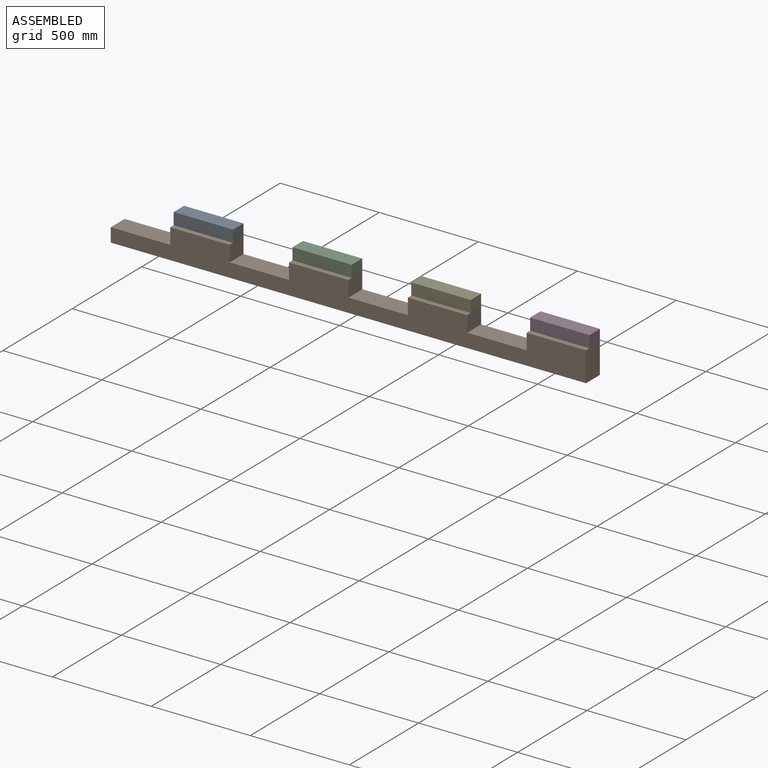
[diagram: assembled view]
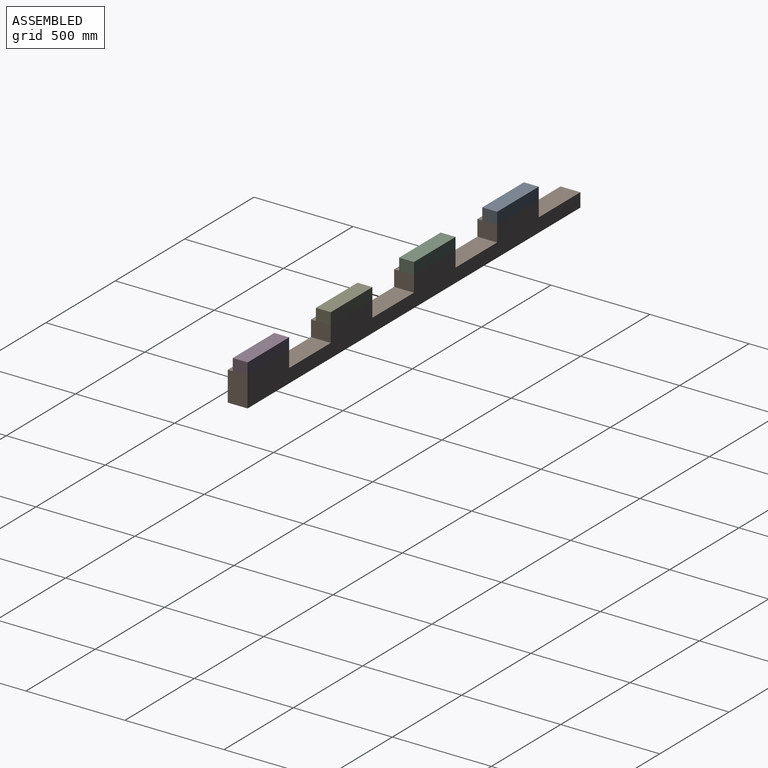
[diagram: assembled view, second angle]
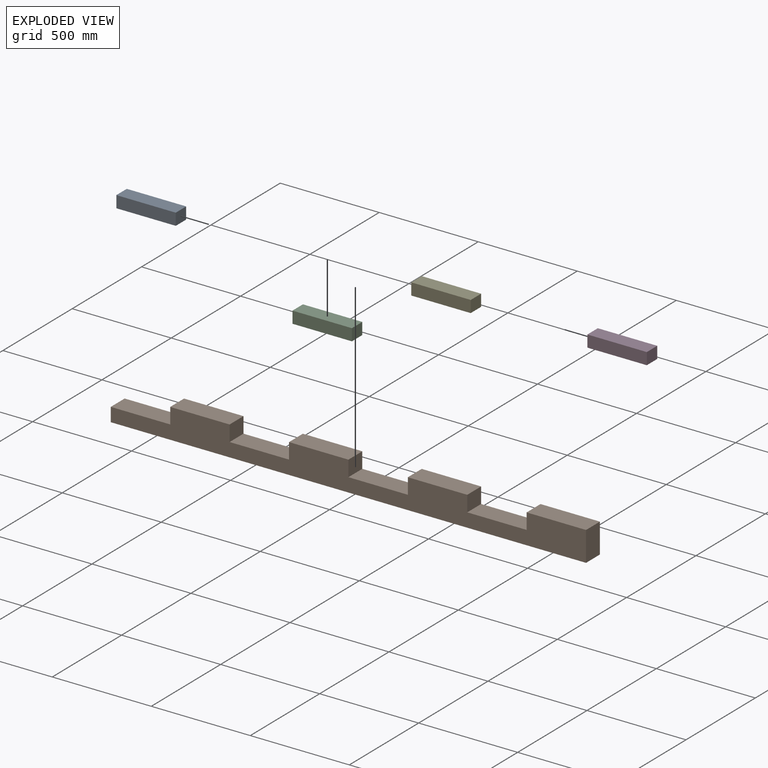
[diagram: exploded view]
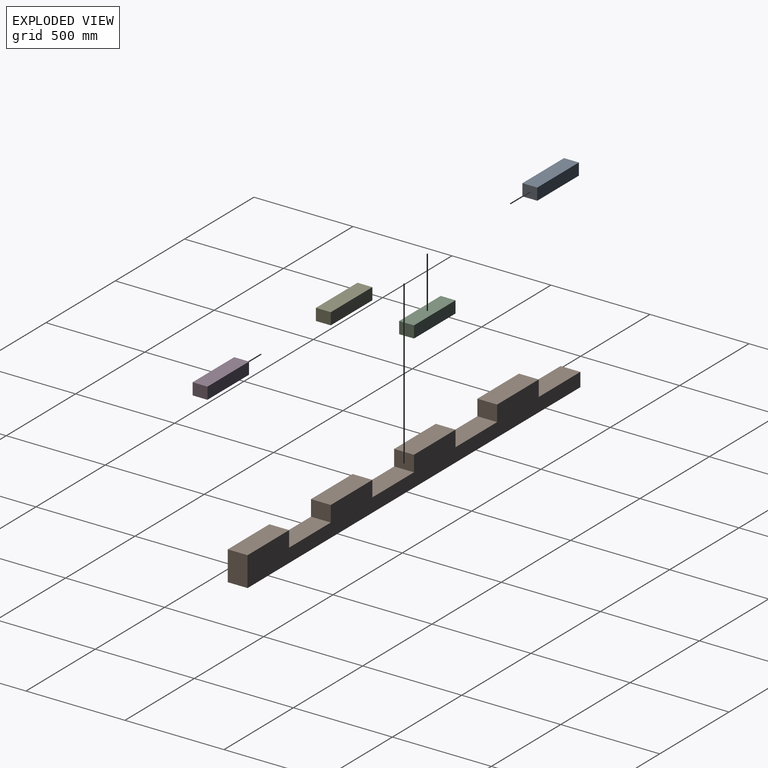
[diagram: exploded view, second angle]
ASSEMBLY  parts=5 mates=3
PART A: 6 faces, bbox 300x75x60 mm
  f0: plane 75x60mm, normal (-1,0,0), area 4500mm2, adj f1,f3,f4,f5
  f1: plane 300x75mm, normal (0,0,-1), area 22500mm2, adj f0,f2,f4,f5
  f2: plane 75x60mm, normal (1,0,0), area 4500mm2, adj f1,f3,f4,f5
  f3: plane 300x75mm, normal (0,0,1), area 22500mm2, adj f0,f2,f4,f5
  f4: plane 300x60mm, normal (0,-1,0), area 18000mm2, adj f0,f1,f2,f3
  f5: plane 300x60mm, normal (0,1,0), area 18000mm2, adj f0,f1,f2,f3
PART B: 20 faces, bbox 2400x100x150 mm
  f0: plane 300x100mm, normal (0,0,1), area 30000mm2, adj f1,f17,f18,f19
  f1: plane 100x80mm, normal (1,0,0), area 8000mm2, adj f0,f2,f18,f19
  f2: plane 300x100mm, normal (0,0,1), area 30000mm2, adj f1,f3,f18,f19
  f3: plane 100x80mm, normal (-1,0,0), area 8000mm2, adj f2,f4,f18,f19
  f4: plane 300x100mm, normal (0,0,1), area 30000mm2, adj f3,f5,f18,f19
  f5: plane 100x70mm, normal (-1,0,0), area 7000mm2, adj f4,f6,f18,f19
  f6: plane 2400x100mm, normal (0,0,-1), area 240000mm2, adj f5,f7,f18,f19
  f7: plane 150x100mm, normal (1,0,0), area 15000mm2, adj f6,f8,f18,f19
  f8: plane 300x100mm, normal (0,0,1), area 30000mm2, adj f7,f9,f18,f19
  f9: plane 100x80mm, normal (-1,0,0), area 8000mm2, adj f8,f10,f18,f19
  f10: plane 300x100mm, normal (0,0,1), area 30000mm2, adj f9,f11,f18,f19
  f11: plane 100x80mm, normal (1,0,0), area 8000mm2, adj f10,f12,f18,f19
  f12: plane 300x100mm, normal (0,0,1), area 30000mm2, adj f11,f13,f18,f19
  f13: plane 100x80mm, normal (-1,0,0), area 8000mm2, adj f12,f14,f18,f19
  f14: plane 300x100mm, normal (0,0,1), area 30000mm2, adj f13,f15,f18,f19
  f15: plane 100x80mm, normal (1,0,0), area 8000mm2, adj f14,f16,f18,f19
  f16: plane 300x100mm, normal (0,0,1), area 30000mm2, adj f15,f17,f18,f19
  f17: plane 100x80mm, normal (-1,0,0), area 8000mm2, adj f0,f16,f18,f19
  f18: plane 2400x150mm, normal (0,-1,0), area 264000mm2, adj f0,f1,f2,f3,f4,f5,f6,f7
  f19: plane 2400x150mm, normal (0,1,0), area 264000mm2, adj f0,f1,f2,f3,f4,f5,f6,f7
PART C: same geometry as A
PART D: same geometry as A
PART E: same geometry as A
PLACE A t=(-387.28,217.78,-117.36)mm
PLACE B t=(-687.28,217.78,-267.36)mm fixed
PLACE C t=(212.72,217.78,-117.36)mm
PLACE D t=(1412.72,217.78,-117.36)mm
PLACE E t=(812.72,217.78,-117.36)mm
MATE planar A.f1 <-> B.f2  axis (0,0,-1) through (-237.28,180.28,-117.36)mm
MATE planar B.f1 <-> A.f2  axis (1,0,0) through (-87.28,167.78,-157.36)mm
MATE planar A.f5 <-> B.f19  axis (0,1,0) through (-237.28,217.78,-87.36)mm
